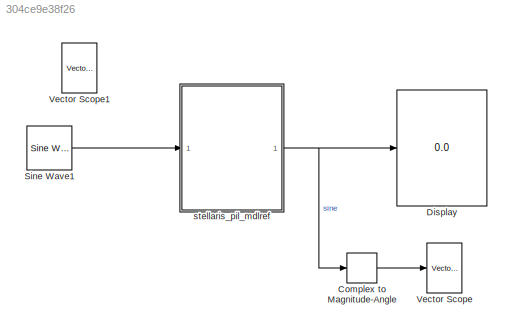
MODEL slx_304ce9e38f26
KIND model
BLOCK [ComplexToMagnitudeAngle] Complex to Magnitude-Angle
  Output = Magnitude
  Ports = [1, 1]
BLOCK [Display] Display
  Decimation = 1
  Lockdown = off
  Ports = [1]
BLOCK [Reference] Sine Wave1  REF=dspsrcs4/Sine Wave
  Amplitude = 1
  CompMethod = Trigonometric fcn
  Frequency = 100
  LastOutDataTypeStr = single
  OutComplex = Real
  OutDataTypeStr = single
  Phase = 0
  Ports = [0, 1]
  ResetState = Restart at time zero
  SampleMode = Discrete
  SampleTime = 1/1024
  SamplesPerFrame = 64
  SourceBlock = dspsrcs4/Sine Wave
  SourceType = Sine Wave
  TableSize = Speed
  additionalParams = off
  allowOverrides = on
  dataType = single
  fracBitsMode = Best precision
  numFracBits = 15
  udDataType = sfix(16)
  wordLen = 16
BLOCK [Reference] Vector Scope  REF=dspsnks4/Vector
Scope
  AxisGrid = on
  AxisLegend = off
  AxisProperties = off
  AxisZoom = off
  DisplayProperties = off
  Domain = Frequency
  FigPos = get(0,'defaultfigureposition')
  FrameNumber = on
  HorizSpan = 1
  InheritXIncr = on
  LineProperties = off
  Memory = off
  OpenScopeAtSimStart = on
  OpenScopeImmediately = off
  Ports = [1]
  ScopeProperties = on
  ShowPortLabels = off
  SourceBlock = dspsnks4/Vector\nScope
  SourceType = Vector Scope
  XAxisParamsVer = 6.9
  XIncr = 1
  XLabel = Time
  XLimit = Auto
  XMax = 1
  XMin = 0
  XRange = [0...Fs/2]
  XStart = 0
  XUnits = Hertz
  YLabel = Amplitude
  YMax = 10
  YMin = -10
  YUnits = dB
BLOCK [Reference] Vector Scope1  REF=dspsnks4/Vector
Scope
  AxisGrid = on
  AxisLegend = off
  AxisProperties = off
  AxisZoom = off
  DisplayProperties = off
  Domain = Time
  FigPos = get(0,'defaultfigureposition')
  FrameNumber = on
  HorizSpan = 1
  IOType = viewer
  InheritXIncr = on
  LineProperties = off
  Memory = off
  OpenScopeAtSimStart = on
  OpenScopeImmediately = off
  Ports = [1]
  ScopeProperties = on
  ShowPortLabels = off
  SourceBlock = dspsnks4/Vector\nScope
  SourceType = Vector Scope
  XAxisParamsVer = 6.9
  XIncr = 1
  XLabel = Time
  XLimit = Auto
  XMax = 1
  XMin = 0
  XRange = [0...Fs/2]
  XStart = 0
  XUnits = Hertz
  YLabel = Amplitude
  YMax = 10
  YMin = -10
  YUnits = dB
BLOCK [ModelReference] stellaris_pil_mdlref
  CopyOfModelName = stellaris_fft
  DefaultDataLogging = on
  ModelNameDialog = stellaris_fft
  ModelReferenceVersion = 1.66
  Ports = [1, 1]
LINE Complex to Magnitude-Angle:1 -> Vector Scope:1
LINE Sine Wave1:1 -> stellaris_pil_mdlref:1
NET stellaris_pil_mdlref:1 -> Complex to Magnitude-Angle:1, Display:1
note: NET lines group one-source signal fan-out (src -> all destinations, sorted); 1:1 wires keep LINE
